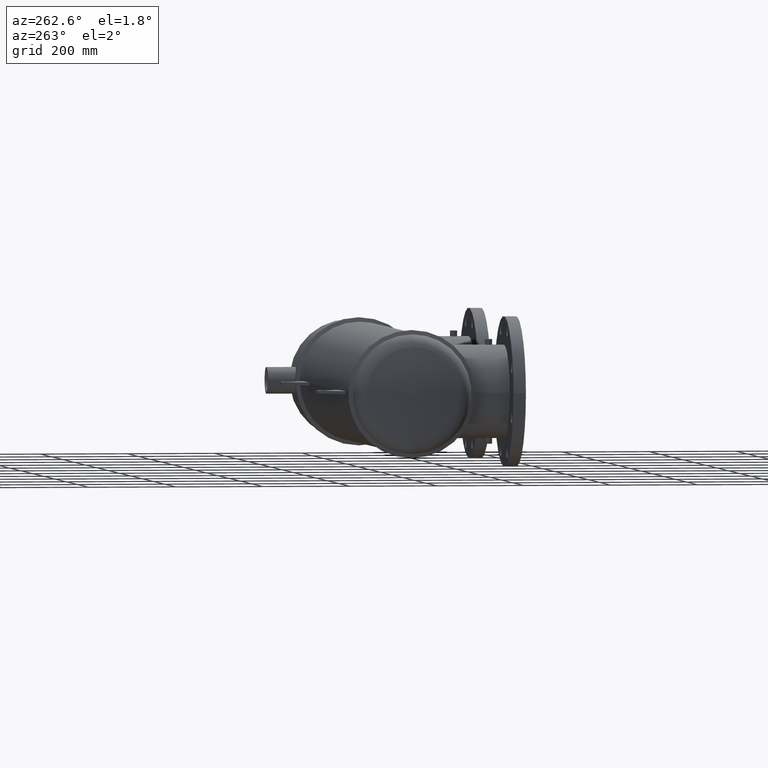
[diagram: clean part render]
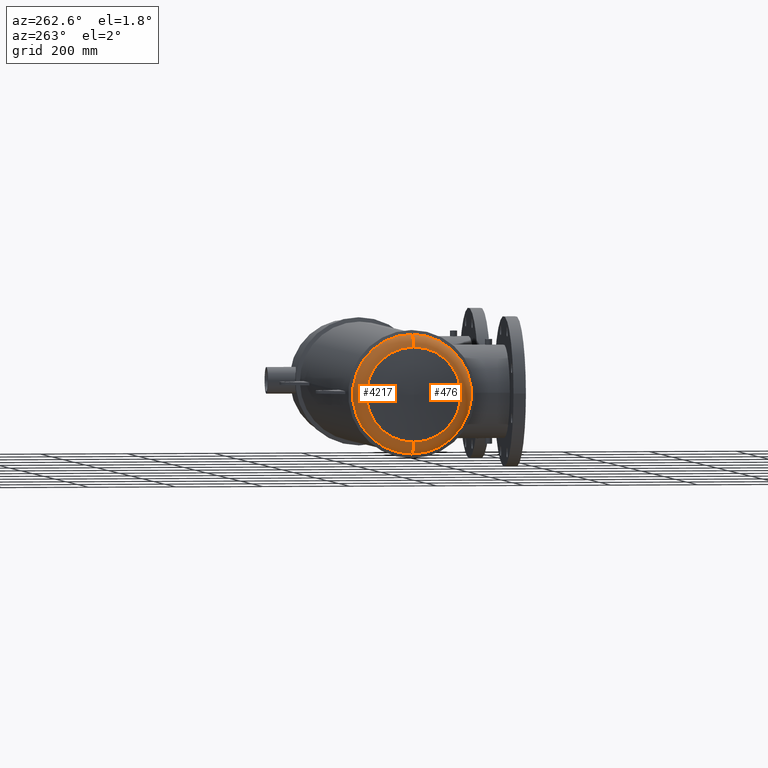
[diagram: same view with one multi-face feature highlighted, each face labeled with its STEP entity id]
A machine part, auxiliary view. The highlighted faces form ONE feature: a constant-radius fillet chain: 2 tangent blend faces with common blend radius 36.1885 mm. The faces share edges in the B-rep.
Their STEP definitions:
[1] entity #4217 (Torus):
#475 = EDGE_LOOP ( 'NONE', ( #6565, #3183, #5724, #1270 ) ) ;
#489 = DIRECTION ( 'NONE',  ( 0.0000000000000000000, -1.224646799147353500E-016, 1.000000000000000000 ) ) ;
#516 = CARTESIAN_POINT ( 'NONE',  ( 1.852598837056926200, 4.862483615634960500E-016, -3.970519188896268300 ) ) ;
#762 = AXIS2_PLACEMENT_3D ( 'NONE', #6848, #4647, #5148 ) ;
#888 = FACE_OUTER_BOUND ( 'NONE', #475, .T. ) ;
#994 = CARTESIAN_POINT ( 'NONE',  ( 0.4607254174967248500, 5.908798225316915800E-016, -4.274804686443658000 ) ) ;
#1270 = ORIENTED_EDGE ( 'NONE', *, *, #2160, .F. ) ;
#1442 = DIRECTION ( 'NONE',  ( 0.0000000000000000000, 0.0000000000000000000, 1.000000000000000000 ) ) ;
#1466 = CIRCLE ( 'NONE', #6738, 1.424746040561571300 ) ;
#1515 = CARTESIAN_POINT ( 'NONE',  ( 0.4607254174967248500, 0.0000000000000000000, 0.0000000000000000000 ) ) ;
#1538 = CIRCLE ( 'NONE', #1763, 4.274804686443658000 ) ;
#1763 = AXIS2_PLACEMENT_3D ( 'NONE', #1515, #7064, #1442 ) ;
#2071 = DIRECTION ( 'NONE',  ( -1.000000000000000000, -0.0000000000000000000, -0.0000000000000000000 ) ) ;
#2093 = DIRECTION ( 'NONE',  ( 0.0000000000000000000, 0.0000000000000000000, 1.000000000000000000 ) ) ;
#2160 = EDGE_CURVE ( 'NONE', #6332, #5253, #2509, .T. ) ;
#2257 = TOROIDAL_SURFACE ( 'NONE', #762, 3.970519188896268300, 1.424746040561571500 ) ;
#2509 = CIRCLE ( 'NONE', #4264, 1.424746040561571300 ) ;
#3183 = ORIENTED_EDGE ( 'NONE', *, *, #6816, .T. ) ;
#3700 = VERTEX_POINT ( 'NONE', #4541 ) ;
#3827 = DIRECTION ( 'NONE',  ( -0.0000000000000000000, 1.000000000000000000, 1.224646799147353200E-016 ) ) ;
#4217 = ADVANCED_FACE ( 'NONE', ( #888 ), #2257, .T. ) ;
#4264 = AXIS2_PLACEMENT_3D ( 'NONE', #7060, #6017, #5951 ) ;
#4541 = CARTESIAN_POINT ( 'NONE',  ( 1.613123103460102800, 0.0000000000000000000, -5.374995124295000300 ) ) ;
#4647 = DIRECTION ( 'NONE',  ( -1.000000000000000000, -0.0000000000000000000, -0.0000000000000000000 ) ) ;
#4718 = EDGE_CURVE ( 'NONE', #6332, #3700, #5931, .T. ) ;
#4939 = CARTESIAN_POINT ( 'NONE',  ( 1.613123103460102800, 6.812091956613555700E-016, 5.374995124295000300 ) ) ;
#5135 = CARTESIAN_POINT ( 'NONE',  ( 0.4607254174967248500, 0.0000000000000000000, 4.274804686443658000 ) ) ;
#5148 = DIRECTION ( 'NONE',  ( 0.0000000000000000000, 0.0000000000000000000, 1.000000000000000000 ) ) ;
#5253 = VERTEX_POINT ( 'NONE', #5135 ) ;
#5433 = CARTESIAN_POINT ( 'NONE',  ( 1.613123103460102800, 0.0000000000000000000, 0.0000000000000000000 ) ) ;
#5724 = ORIENTED_EDGE ( 'NONE', *, *, #6954, .F. ) ;
#5931 = CIRCLE ( 'NONE', #6604, 5.374995124295000300 ) ;
#5951 = DIRECTION ( 'NONE',  ( 0.0000000000000000000, 0.0000000000000000000, -1.000000000000000000 ) ) ;
#5991 = VERTEX_POINT ( 'NONE', #994 ) ;
#6017 = DIRECTION ( 'NONE',  ( 0.0000000000000000000, -1.000000000000000000, 0.0000000000000000000 ) ) ;
#6332 = VERTEX_POINT ( 'NONE', #4939 ) ;
#6565 = ORIENTED_EDGE ( 'NONE', *, *, #4718, .T. ) ;
#6604 = AXIS2_PLACEMENT_3D ( 'NONE', #5433, #2071, #2093 ) ;
#6738 = AXIS2_PLACEMENT_3D ( 'NONE', #516, #3827, #489 ) ;
#6816 = EDGE_CURVE ( 'NONE', #3700, #5991, #1466, .T. ) ;
#6848 = CARTESIAN_POINT ( 'NONE',  ( 1.852598837056926200, 0.0000000000000000000, 0.0000000000000000000 ) ) ;
#6954 = EDGE_CURVE ( 'NONE', #5253, #5991, #1538, .T. ) ;
#7060 = CARTESIAN_POINT ( 'NONE',  ( 1.852598837056926200, 0.0000000000000000000, 3.970519188896268300 ) ) ;
#7064 = DIRECTION ( 'NONE',  ( -1.000000000000000000, -0.0000000000000000000, -0.0000000000000000000 ) ) ;
[2] entity #476 (Torus):
#476 = ADVANCED_FACE ( 'NONE', ( #691 ), #6112, .T. ) ;
#489 = DIRECTION ( 'NONE',  ( 0.0000000000000000000, -1.224646799147353500E-016, 1.000000000000000000 ) ) ;
#516 = CARTESIAN_POINT ( 'NONE',  ( 1.852598837056926200, 4.862483615634960500E-016, -3.970519188896268300 ) ) ;
#691 = FACE_OUTER_BOUND ( 'NONE', #1047, .T. ) ;
#994 = CARTESIAN_POINT ( 'NONE',  ( 0.4607254174967248500, 5.908798225316915800E-016, -4.274804686443658000 ) ) ;
#1047 = EDGE_LOOP ( 'NONE', ( #1356, #6916, #5721, #6434 ) ) ;
#1356 = ORIENTED_EDGE ( 'NONE', *, *, #6816, .F. ) ;
#1466 = CIRCLE ( 'NONE', #6738, 1.424746040561571300 ) ;
#1893 = CIRCLE ( 'NONE', #6036, 5.374995124295000300 ) ;
#2028 = DIRECTION ( 'NONE',  ( 0.0000000000000000000, 0.0000000000000000000, 1.000000000000000000 ) ) ;
#2160 = EDGE_CURVE ( 'NONE', #6332, #5253, #2509, .T. ) ;
#2386 = EDGE_CURVE ( 'NONE', #3700, #6332, #1893, .T. ) ;
#2509 = CIRCLE ( 'NONE', #4264, 1.424746040561571300 ) ;
#3372 = AXIS2_PLACEMENT_3D ( 'NONE', #5461, #3758, #2028 ) ;
#3700 = VERTEX_POINT ( 'NONE', #4541 ) ;
#3758 = DIRECTION ( 'NONE',  ( -1.000000000000000000, -0.0000000000000000000, -0.0000000000000000000 ) ) ;
#3819 = CARTESIAN_POINT ( 'NONE',  ( 0.4607254174967248500, 0.0000000000000000000, 0.0000000000000000000 ) ) ;
#3827 = DIRECTION ( 'NONE',  ( -0.0000000000000000000, 1.000000000000000000, 1.224646799147353200E-016 ) ) ;
#4101 = CARTESIAN_POINT ( 'NONE',  ( 1.613123103460102800, 0.0000000000000000000, 0.0000000000000000000 ) ) ;
#4264 = AXIS2_PLACEMENT_3D ( 'NONE', #7060, #6017, #5951 ) ;
#4432 = CIRCLE ( 'NONE', #5313, 4.274804686443658000 ) ;
#4541 = CARTESIAN_POINT ( 'NONE',  ( 1.613123103460102800, 0.0000000000000000000, -5.374995124295000300 ) ) ;
#4939 = CARTESIAN_POINT ( 'NONE',  ( 1.613123103460102800, 6.812091956613555700E-016, 5.374995124295000300 ) ) ;
#5135 = CARTESIAN_POINT ( 'NONE',  ( 0.4607254174967248500, 0.0000000000000000000, 4.274804686443658000 ) ) ;
#5253 = VERTEX_POINT ( 'NONE', #5135 ) ;
#5313 = AXIS2_PLACEMENT_3D ( 'NONE', #3819, #5527, #7131 ) ;
#5461 = CARTESIAN_POINT ( 'NONE',  ( 1.852598837056926200, 0.0000000000000000000, 0.0000000000000000000 ) ) ;
#5527 = DIRECTION ( 'NONE',  ( -1.000000000000000000, -0.0000000000000000000, -0.0000000000000000000 ) ) ;
#5721 = ORIENTED_EDGE ( 'NONE', *, *, #2160, .T. ) ;
#5783 = DIRECTION ( 'NONE',  ( 0.0000000000000000000, 0.0000000000000000000, 1.000000000000000000 ) ) ;
#5951 = DIRECTION ( 'NONE',  ( 0.0000000000000000000, 0.0000000000000000000, -1.000000000000000000 ) ) ;
#5991 = VERTEX_POINT ( 'NONE', #994 ) ;
#6017 = DIRECTION ( 'NONE',  ( 0.0000000000000000000, -1.000000000000000000, 0.0000000000000000000 ) ) ;
#6036 = AXIS2_PLACEMENT_3D ( 'NONE', #4101, #6317, #5783 ) ;
#6112 = TOROIDAL_SURFACE ( 'NONE', #3372, 3.970519188896268300, 1.424746040561571500 ) ;
#6135 = EDGE_CURVE ( 'NONE', #5991, #5253, #4432, .T. ) ;
#6317 = DIRECTION ( 'NONE',  ( -1.000000000000000000, -0.0000000000000000000, -0.0000000000000000000 ) ) ;
#6332 = VERTEX_POINT ( 'NONE', #4939 ) ;
#6434 = ORIENTED_EDGE ( 'NONE', *, *, #6135, .F. ) ;
#6738 = AXIS2_PLACEMENT_3D ( 'NONE', #516, #3827, #489 ) ;
#6816 = EDGE_CURVE ( 'NONE', #3700, #5991, #1466, .T. ) ;
#6916 = ORIENTED_EDGE ( 'NONE', *, *, #2386, .T. ) ;
#7060 = CARTESIAN_POINT ( 'NONE',  ( 1.852598837056926200, 0.0000000000000000000, 3.970519188896268300 ) ) ;
#7131 = DIRECTION ( 'NONE',  ( 0.0000000000000000000, 0.0000000000000000000, 1.000000000000000000 ) ) ;